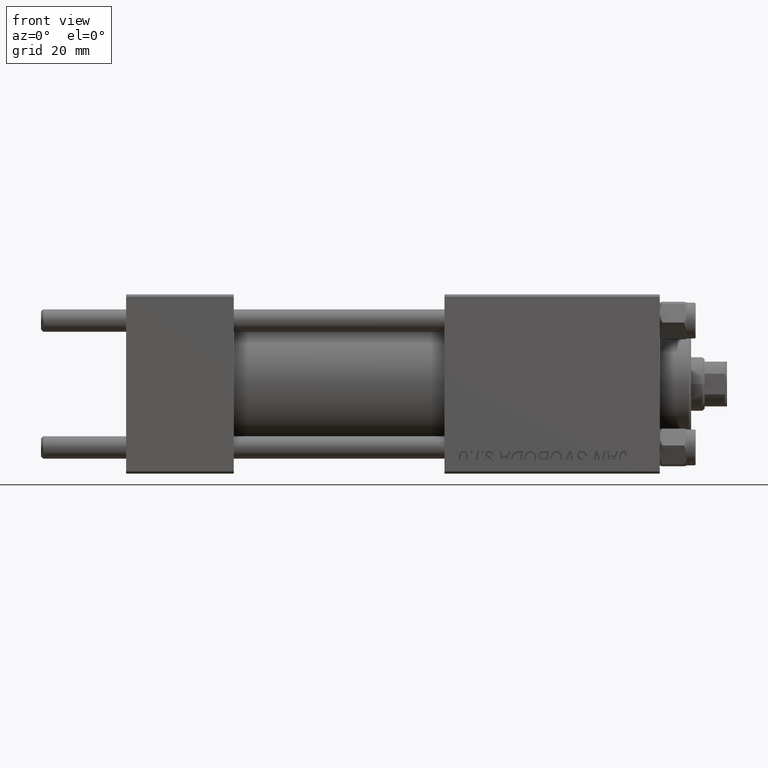
[diagram: clean part render]
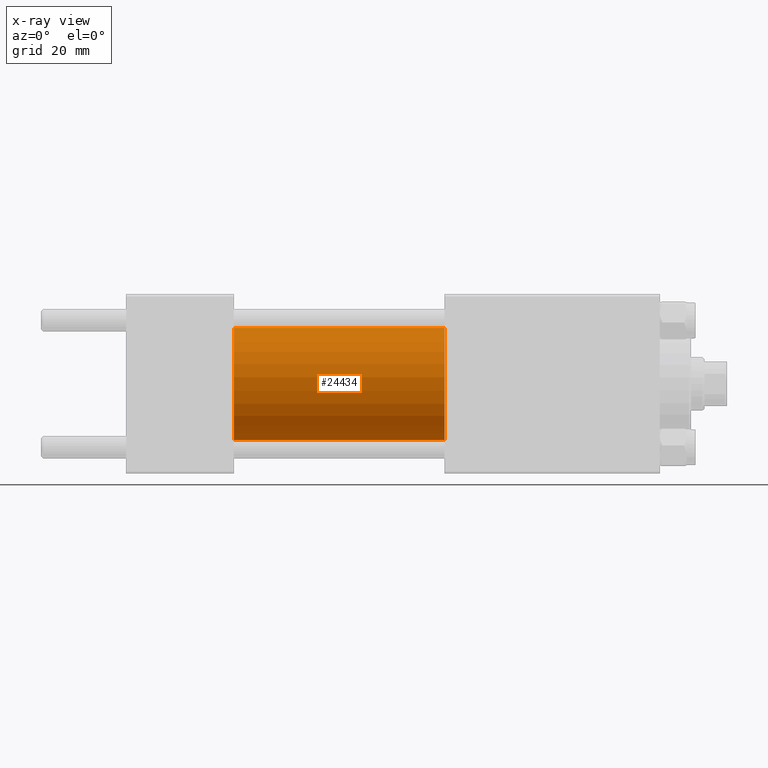
[diagram: x-ray — body ghosted, one internal face saturated and labeled with its STEP entity id]
A machine part, front view, then the same camera in x-ray: the body is ghosted and one INTERNAL B-rep face — a face not visible from any outside direction — is saturated and labeled: STEP entity #24434.
In plain terms, the highlighted cylindrical surface (partial cylindrical patch) has radius 12.5 mm, axis along (-1, -0, -0).
Its self-contained STEP definition (entity closure, byte-faithful):
#2772 = CARTESIAN_POINT ( 'NONE',  ( 71.00000000000001421, 0.000000000000000000, 0.000000000000000000 ) ) ;
#2777 = CARTESIAN_POINT ( 'NONE',  ( 24.00000000000000000, 1.530808498934191127E-15, -12.49999999999999645 ) ) ;
#4435 = CARTESIAN_POINT ( 'NONE',  ( 71.00000000000001421, 0.000000000000000000, 12.49999999999999645 ) ) ;
#6102 = LINE ( 'NONE', #4435, #41803 ) ;
#7937 = EDGE_CURVE ( 'NONE', #44821, #37114, #45454, .T. ) ;
#10201 = ORIENTED_EDGE ( 'NONE', *, *, #47710, .F. ) ;
#11277 = EDGE_LOOP ( 'NONE', ( #35515, #47018, #10201, #12045 ) ) ;
#12045 = ORIENTED_EDGE ( 'NONE', *, *, #25004, .F. ) ;
#12654 = VECTOR ( 'NONE', #22222, 1000.000000000000000 ) ;
#13766 = EDGE_CURVE ( 'NONE', #27045, #44821, #46723, .T. ) ;
#14151 = CYLINDRICAL_SURFACE ( 'NONE', #18380, 12.49999999999999645 ) ;
#14398 = FACE_OUTER_BOUND ( 'NONE', #11277, .T. ) ;
#17246 = CARTESIAN_POINT ( 'NONE',  ( 71.00000000000001421, 0.000000000000000000, 12.49999999999999645 ) ) ;
#18380 = AXIS2_PLACEMENT_3D ( 'NONE', #2772, #45219, #41416 ) ;
#22051 = CARTESIAN_POINT ( 'NONE',  ( 24.00000000000000000, 0.000000000000000000, 12.49999999999999645 ) ) ;
#22222 = DIRECTION ( 'NONE',  ( -1.000000000000000000, -0.000000000000000000, -0.000000000000000000 ) ) ;
#24434 = ADVANCED_FACE ( 'NONE', ( #14398 ), #14151, .F. ) ;
#25004 = EDGE_CURVE ( 'NONE', #27045, #44755, #6102, .T. ) ;
#25726 = AXIS2_PLACEMENT_3D ( 'NONE', #27209, #30497, #42602 ) ;
#27045 = VERTEX_POINT ( 'NONE', #17246 ) ;
#27209 = CARTESIAN_POINT ( 'NONE',  ( 71.00000000000001421, 0.000000000000000000, 0.000000000000000000 ) ) ;
#30497 = DIRECTION ( 'NONE',  ( 1.000000000000000000, 0.000000000000000000, 0.000000000000000000 ) ) ;
#32629 = CIRCLE ( 'NONE', #33442, 12.49999999999999645 ) ;
#33351 = CARTESIAN_POINT ( 'NONE',  ( 71.00000000000001421, 1.530808498934191127E-15, -12.49999999999999645 ) ) ;
#33442 = AXIS2_PLACEMENT_3D ( 'NONE', #42322, #38548, #34770 ) ;
#34770 = DIRECTION ( 'NONE',  ( 0.000000000000000000, 0.000000000000000000, -1.000000000000000000 ) ) ;
#35515 = ORIENTED_EDGE ( 'NONE', *, *, #13766, .T. ) ;
#37114 = VERTEX_POINT ( 'NONE', #2777 ) ;
#38548 = DIRECTION ( 'NONE',  ( 1.000000000000000000, 0.000000000000000000, 0.000000000000000000 ) ) ;
#41416 = DIRECTION ( 'NONE',  ( 0.000000000000000000, 0.000000000000000000, 1.000000000000000000 ) ) ;
#41803 = VECTOR ( 'NONE', #43762, 1000.000000000000000 ) ;
#42322 = CARTESIAN_POINT ( 'NONE',  ( 24.00000000000000000, 0.000000000000000000, 0.000000000000000000 ) ) ;
#42602 = DIRECTION ( 'NONE',  ( 0.000000000000000000, 0.000000000000000000, -1.000000000000000000 ) ) ;
#43762 = DIRECTION ( 'NONE',  ( -1.000000000000000000, -0.000000000000000000, -0.000000000000000000 ) ) ;
#44755 = VERTEX_POINT ( 'NONE', #22051 ) ;
#44791 = CARTESIAN_POINT ( 'NONE',  ( 71.00000000000001421, 1.530808498934191127E-15, -12.49999999999999645 ) ) ;
#44821 = VERTEX_POINT ( 'NONE', #44791 ) ;
#45219 = DIRECTION ( 'NONE',  ( -1.000000000000000000, -0.000000000000000000, -0.000000000000000000 ) ) ;
#45454 = LINE ( 'NONE', #33351, #12654 ) ;
#46723 = CIRCLE ( 'NONE', #25726, 12.49999999999999645 ) ;
#47018 = ORIENTED_EDGE ( 'NONE', *, *, #7937, .T. ) ;
#47710 = EDGE_CURVE ( 'NONE', #44755, #37114, #32629, .T. ) ;